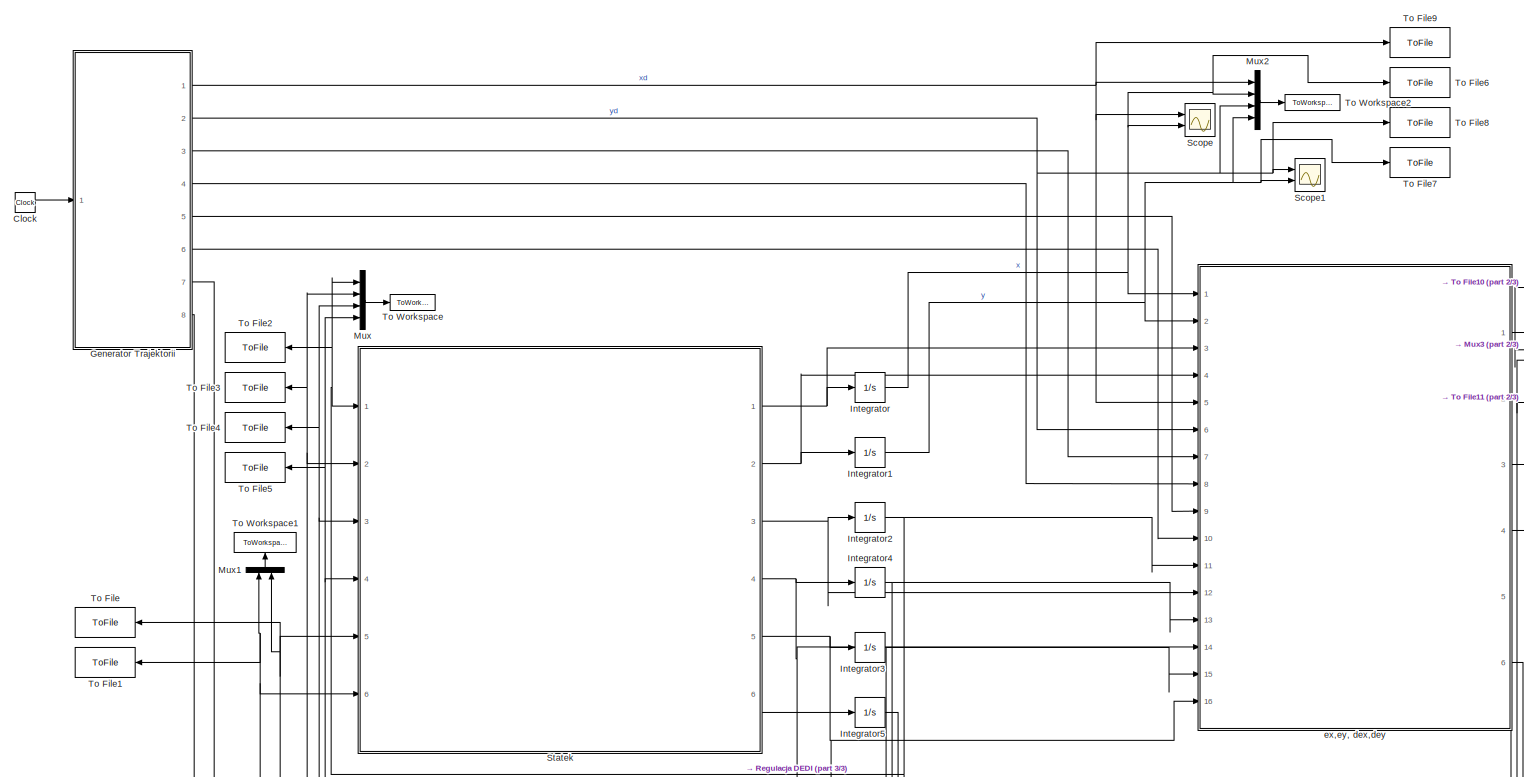
[diagram: root canvas - part 1/3, full width, top band]
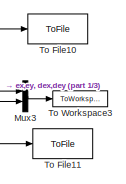
[diagram: root canvas - part 2/3, top right region]
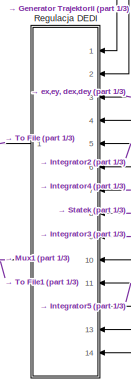
[diagram: root canvas - part 3/3, bottom center region]
MODEL slx_65b0e831601b
KIND model
CONFIG AbsTol = auto
CONFIG FixedStep = 0.001
CONFIG MaxStep = 0.01
CONFIG MinStep = .009
CONFIG RelTol = 1e-2
CONFIG SampleTimeConstraint = Unconstrained
CONFIG Solver = FixedStepAuto
CONFIG SolverMode = SingleTasking
CONFIG SolverName = FixedStepAuto
CONFIG StartTime = 0.0
CONFIG StopTime = 10
BLOCK [Clock] Clock
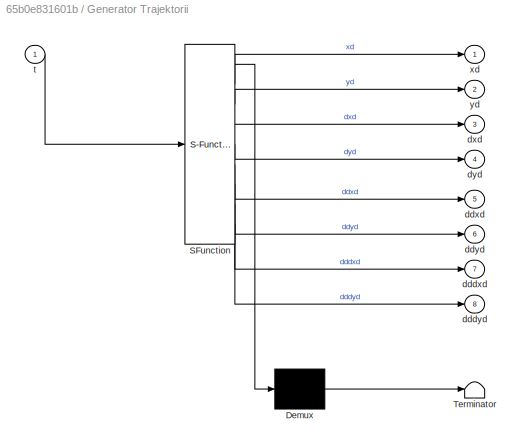
BLOCK [SubSystem] Generator Trajektorii
  ErrorFcn = Stateflow.Translate.translate
  PermitHierarchicalResolution = ExplicitOnly
  Ports = [1, 8]
  RequestExecContextInheritance = off
  SFBlockType = MATLAB Function
  TreatAsAtomicUnit = on
BLOCK [Demux] Generator Trajektorii/ Demux 
  Outputs = 1
  Ports = [1, 1]
BLOCK [S-Function] Generator Trajektorii/ SFunction 
  EnableBusSupport = on
  FunctionName = sf_sfun
  PortCounts = [1 9]
  Ports = [1, 9]
  SFunctionDeploymentMode = off
  Tag = Stateflow S-Function Sterowanie_StatkiemDEDI_2015 1
BLOCK [Terminator] Generator Trajektorii/ Terminator 
BLOCK [Outport] Generator Trajektorii/dddxd
  IconDisplay = Port number
  Port = 7
BLOCK [Outport] Generator Trajektorii/dddyd
  IconDisplay = Port number
  Port = 8
BLOCK [Outport] Generator Trajektorii/ddxd
  IconDisplay = Port number
  Port = 5
BLOCK [Outport] Generator Trajektorii/ddyd
  IconDisplay = Port number
  Port = 6
BLOCK [Outport] Generator Trajektorii/dxd
  IconDisplay = Port number
  Port = 3
BLOCK [Outport] Generator Trajektorii/dyd
  IconDisplay = Port number
  Port = 4
BLOCK [Inport] Generator Trajektorii/t
  IconDisplay = Port number
BLOCK [Outport] Generator Trajektorii/xd
  IconDisplay = Port number
BLOCK [Outport] Generator Trajektorii/yd
  IconDisplay = Port number
  Port = 2
BLOCK [Integrator] Integrator
  InitialCondition = -0.01
  Ports = [1, 1]
BLOCK [Integrator] Integrator1
  InitialCondition = 1.01
  Ports = [1, 1]
BLOCK [Integrator] Integrator2
  InitialCondition = 0.01
  Ports = [1, 1]
BLOCK [Integrator] Integrator3
  InitialCondition = 0.1
  Ports = [1, 1]
BLOCK [Integrator] Integrator4
  InitialCondition = 0.1
  Ports = [1, 1]
BLOCK [Integrator] Integrator5
  InitialCondition = 0.1
  Ports = [1, 1]
BLOCK [Mux] Mux
  DisplayOption = bar
  Ports = [4, 1]
BLOCK [Mux] Mux1
  DisplayOption = bar
  Inputs = 2
  Ports = [2, 1]
BLOCK [Mux] Mux2
  DisplayOption = bar
  Ports = [4, 1]
BLOCK [Mux] Mux3
  DisplayOption = bar
  Inputs = 2
  Ports = [2, 1]
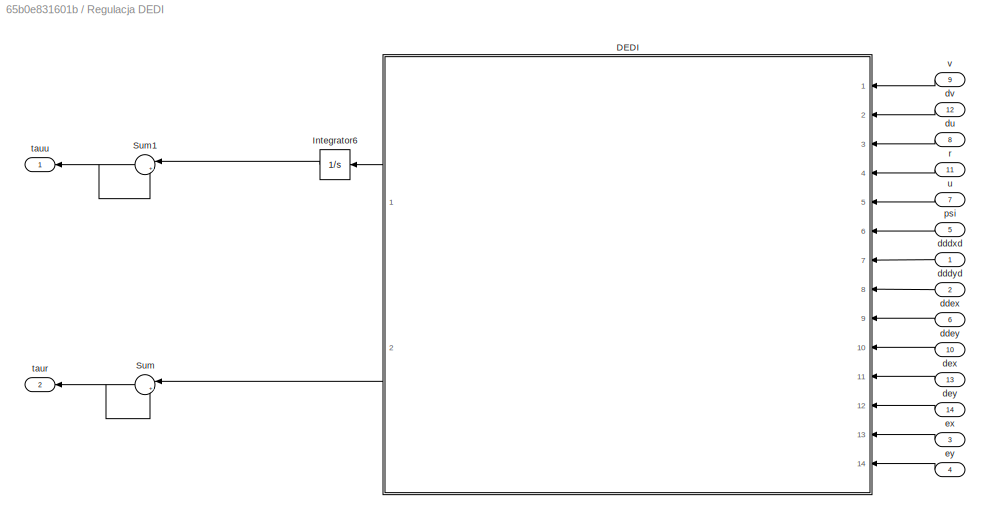
BLOCK [SubSystem] Regulacja DEDI
  Ports = [14, 2]
  RequestExecContextInheritance = off
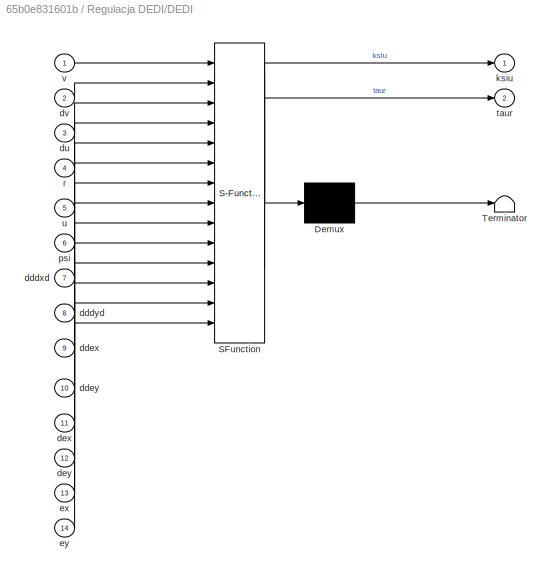
BLOCK [SubSystem] Regulacja DEDI/DEDI
  ErrorFcn = Stateflow.Translate.translate
  PermitHierarchicalResolution = ExplicitOnly
  Ports = [14, 2]
  RequestExecContextInheritance = off
  SFBlockType = MATLAB Function
  TreatAsAtomicUnit = on
BLOCK [Demux] Regulacja DEDI/DEDI/ Demux 
  Outputs = 1
  Ports = [1, 1]
BLOCK [S-Function] Regulacja DEDI/DEDI/ SFunction 
  EnableBusSupport = on
  FunctionName = sf_sfun
  PortCounts = [14 3]
  Ports = [14, 3]
  SFunctionDeploymentMode = off
  Tag = Stateflow S-Function Sterowanie_StatkiemDEDI_2015 4
BLOCK [Terminator] Regulacja DEDI/DEDI/ Terminator 
BLOCK [Inport] Regulacja DEDI/DEDI/dddxd
  IconDisplay = Port number
  Port = 7
BLOCK [Inport] Regulacja DEDI/DEDI/dddyd
  IconDisplay = Port number
  Port = 8
BLOCK [Inport] Regulacja DEDI/DEDI/ddex
  IconDisplay = Port number
  Port = 9
BLOCK [Inport] Regulacja DEDI/DEDI/ddey
  IconDisplay = Port number
  Port = 10
BLOCK [Inport] Regulacja DEDI/DEDI/dex
  IconDisplay = Port number
  Port = 11
BLOCK [Inport] Regulacja DEDI/DEDI/dey
  IconDisplay = Port number
  Port = 12
BLOCK [Inport] Regulacja DEDI/DEDI/du
  IconDisplay = Port number
  Port = 3
BLOCK [Inport] Regulacja DEDI/DEDI/dv
  IconDisplay = Port number
  Port = 2
BLOCK [Inport] Regulacja DEDI/DEDI/ex
  IconDisplay = Port number
  Port = 13
BLOCK [Inport] Regulacja DEDI/DEDI/ey
  IconDisplay = Port number
  Port = 14
BLOCK [Outport] Regulacja DEDI/DEDI/ksiu
  IconDisplay = Port number
BLOCK [Inport] Regulacja DEDI/DEDI/psi
  IconDisplay = Port number
  Port = 6
BLOCK [Inport] Regulacja DEDI/DEDI/r
  IconDisplay = Port number
  Port = 4
BLOCK [Outport] Regulacja DEDI/DEDI/taur
  IconDisplay = Port number
  Port = 2
BLOCK [Inport] Regulacja DEDI/DEDI/u
  IconDisplay = Port number
  Port = 5
BLOCK [Inport] Regulacja DEDI/DEDI/v
  IconDisplay = Port number
BLOCK [Integrator] Regulacja DEDI/Integrator6
  Ports = [1, 1]
BLOCK [Sum] Regulacja DEDI/Sum
  IconShape = round
  InputSameDT = off
  Inputs = |+-
  OutDataTypeStr = Inherit: Inherit via internal rule
  Ports = [2, 1]
  SaturateOnIntegerOverflow = off
BLOCK [Sum] Regulacja DEDI/Sum1
  IconShape = round
  InputSameDT = off
  Inputs = |+-
  OutDataTypeStr = Inherit: Inherit via internal rule
  Ports = [2, 1]
  SaturateOnIntegerOverflow = off
BLOCK [Inport] Regulacja DEDI/dddxd
  IconDisplay = Port number
BLOCK [Inport] Regulacja DEDI/dddyd
  IconDisplay = Port number
  Port = 2
BLOCK [Inport] Regulacja DEDI/ddex
  IconDisplay = Port number
  Port = 6
BLOCK [Inport] Regulacja DEDI/ddey
  IconDisplay = Port number
  Port = 10
BLOCK [Inport] Regulacja DEDI/dex
  IconDisplay = Port number
  Port = 13
BLOCK [Inport] Regulacja DEDI/dey
  IconDisplay = Port number
  Port = 14
BLOCK [Inport] Regulacja DEDI/du
  IconDisplay = Port number
  Port = 8
BLOCK [Inport] Regulacja DEDI/dv
  IconDisplay = Port number
  Port = 12
BLOCK [Inport] Regulacja DEDI/ex
  IconDisplay = Port number
  Port = 3
BLOCK [Inport] Regulacja DEDI/ey
  IconDisplay = Port number
  Port = 4
BLOCK [Inport] Regulacja DEDI/psi
  IconDisplay = Port number
  Port = 5
BLOCK [Inport] Regulacja DEDI/r
  IconDisplay = Port number
  Port = 11
BLOCK [Outport] Regulacja DEDI/taur
  IconDisplay = Port number
  Port = 2
BLOCK [Outport] Regulacja DEDI/tauu
  IconDisplay = Port number
BLOCK [Inport] Regulacja DEDI/u
  IconDisplay = Port number
  Port = 7
BLOCK [Inport] Regulacja DEDI/v
  IconDisplay = Port number
  Port = 9
BLOCK [Scope] Scope
  Floating = off
  NumInputPorts = 2
  Ports = [2]
  ScopeSpecificationString = Simulink.scopes.TimeScopeBlockCfg('CurrentConfiguration', extmgr.ConfigurationSet(extmgr.Configuration('Core','General UI',true),extmgr.Configuration('Core','Source UI',true),extmgr.Configuration('Sources','WiredSimulink',true),extmgr.Configuration('Visuals','Time Domain',true,'SerializedDisplays',{struct('MinYLimReal','-1.25','MaxYLimReal','1.25','YLabelReal','','MinYLimMag','0.00000','MaxYLimMag...<+1412ch>
BLOCK [Scope] Scope1
  Floating = off
  NumInputPorts = 2
  Ports = [2]
  ScopeSpecificationString = Simulink.scopes.TimeScopeBlockCfg('CurrentConfiguration', extmgr.ConfigurationSet(extmgr.Configuration('Core','General UI',true),extmgr.Configuration('Core','Source UI',true),extmgr.Configuration('Sources','WiredSimulink',true,'DataLoggingVariableName','ScopeData1'),extmgr.Configuration('Visuals','Time Domain',true,'SerializedDisplays',{struct('MinYLimReal','-1.26359','MaxYLimReal','1.2718','YLabe...<+1420ch>
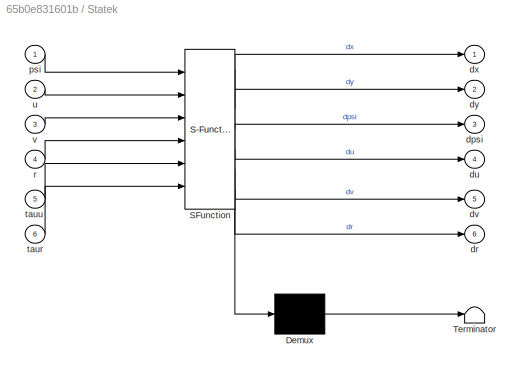
BLOCK [SubSystem] Statek
  ErrorFcn = Stateflow.Translate.translate
  PermitHierarchicalResolution = ExplicitOnly
  Ports = [6, 6]
  RequestExecContextInheritance = off
  SFBlockType = MATLAB Function
  TreatAsAtomicUnit = on
BLOCK [Demux] Statek/ Demux 
  Outputs = 1
  Ports = [1, 1]
BLOCK [S-Function] Statek/ SFunction 
  EnableBusSupport = on
  FunctionName = sf_sfun
  PortCounts = [6 7]
  Ports = [6, 7]
  SFunctionDeploymentMode = off
  Tag = Stateflow S-Function Sterowanie_StatkiemDEDI_2015 2
BLOCK [Terminator] Statek/ Terminator 
BLOCK [Outport] Statek/dpsi
  IconDisplay = Port number
  Port = 3
BLOCK [Outport] Statek/dr
  IconDisplay = Port number
  Port = 6
BLOCK [Outport] Statek/du
  IconDisplay = Port number
  Port = 4
BLOCK [Outport] Statek/dv
  IconDisplay = Port number
  Port = 5
BLOCK [Outport] Statek/dx
  IconDisplay = Port number
BLOCK [Outport] Statek/dy
  IconDisplay = Port number
  Port = 2
BLOCK [Inport] Statek/psi
  IconDisplay = Port number
BLOCK [Inport] Statek/r
  IconDisplay = Port number
  Port = 4
BLOCK [Inport] Statek/taur
  IconDisplay = Port number
  Port = 6
BLOCK [Inport] Statek/tauu
  IconDisplay = Port number
  Port = 5
BLOCK [Inport] Statek/u
  IconDisplay = Port number
  Port = 2
BLOCK [Inport] Statek/v
  IconDisplay = Port number
  Port = 3
BLOCK [ToFile] To File
  Filename = tauu.mat
  Ports = [1]
  SaveFormat = Timeseries
BLOCK [ToFile] To File1
  Filename = taur.mat
  Ports = [1]
  SaveFormat = Timeseries
BLOCK [ToFile] To File10
  Filename = ex.mat
  Ports = [1]
  SaveFormat = Timeseries
BLOCK [ToFile] To File11
  Filename = ey.mat
  Ports = [1]
  SaveFormat = Timeseries
BLOCK [ToFile] To File2
  Filename = psi.mat
  Ports = [1]
  SaveFormat = Timeseries
BLOCK [ToFile] To File3
  Filename = u.mat
  Ports = [1]
  SaveFormat = Timeseries
BLOCK [ToFile] To File4
  Filename = v.mat
  Ports = [1]
  SaveFormat = Timeseries
BLOCK [ToFile] To File5
  Filename = r.mat
  Ports = [1]
  SaveFormat = Timeseries
BLOCK [ToFile] To File6
  Filename = x.mat
  Ports = [1]
  SaveFormat = Timeseries
BLOCK [ToFile] To File7
  Filename = y.mat
  Ports = [1]
  SaveFormat = Timeseries
BLOCK [ToFile] To File8
  Filename = yd.mat
  Ports = [1]
  SaveFormat = Timeseries
BLOCK [ToFile] To File9
  Filename = xd.mat
  Ports = [1]
  SaveFormat = Timeseries
BLOCK [ToWorkspace] To Workspace
  FixptAsFi = on
  MaxDataPoints = inf
  Ports = [1]
  SampleTime = -1
  SaveFormat = Timeseries
  VariableName = statek
BLOCK [ToWorkspace] To Workspace1
  FixptAsFi = on
  MaxDataPoints = inf
  Ports = [1]
  SampleTime = -1
  SaveFormat = Timeseries
  VariableName = sterowania
BLOCK [ToWorkspace] To Workspace2
  FixptAsFi = on
  MaxDataPoints = inf
  Ports = [1]
  SampleTime = -1
  SaveFormat = Timeseries
  VariableName = regulacja
BLOCK [ToWorkspace] To Workspace3
  FixptAsFi = on
  MaxDataPoints = inf
  Ports = [1]
  SampleTime = -1
  SaveFormat = Timeseries
  VariableName = uchyby
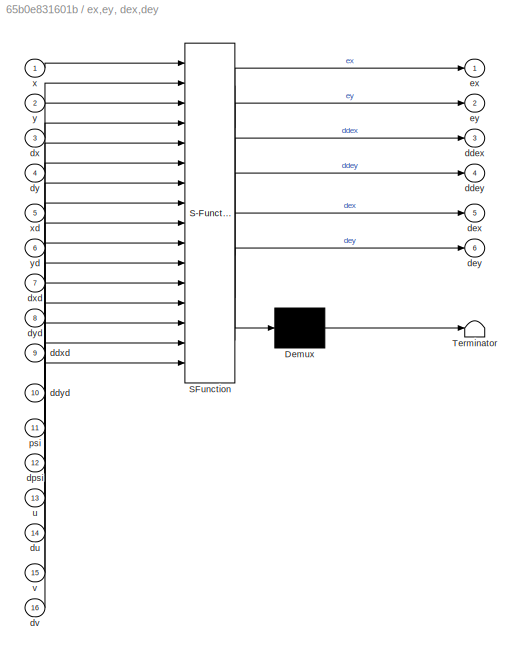
BLOCK [SubSystem] ex,ey, dex,dey
  ErrorFcn = Stateflow.Translate.translate
  PermitHierarchicalResolution = ExplicitOnly
  Ports = [16, 6]
  RequestExecContextInheritance = off
  SFBlockType = MATLAB Function
  TreatAsAtomicUnit = on
BLOCK [Demux] ex,ey, dex,dey/ Demux 
  Outputs = 1
  Ports = [1, 1]
BLOCK [S-Function] ex,ey, dex,dey/ SFunction 
  EnableBusSupport = on
  FunctionName = sf_sfun
  PortCounts = [16 7]
  Ports = [16, 7]
  SFunctionDeploymentMode = off
  Tag = Stateflow S-Function Sterowanie_StatkiemDEDI_2015 3
BLOCK [Terminator] ex,ey, dex,dey/ Terminator 
BLOCK [Outport] ex,ey, dex,dey/ddex
  IconDisplay = Port number
  Port = 3
BLOCK [Outport] ex,ey, dex,dey/ddey
  IconDisplay = Port number
  Port = 4
BLOCK [Inport] ex,ey, dex,dey/ddxd
  IconDisplay = Port number
  Port = 9
BLOCK [Inport] ex,ey, dex,dey/ddyd
  IconDisplay = Port number
  Port = 10
BLOCK [Outport] ex,ey, dex,dey/dex
  IconDisplay = Port number
  Port = 5
BLOCK [Outport] ex,ey, dex,dey/dey
  IconDisplay = Port number
  Port = 6
BLOCK [Inport] ex,ey, dex,dey/dpsi
  IconDisplay = Port number
  Port = 12
BLOCK [Inport] ex,ey, dex,dey/du
  IconDisplay = Port number
  Port = 14
BLOCK [Inport] ex,ey, dex,dey/dv
  IconDisplay = Port number
  Port = 16
BLOCK [Inport] ex,ey, dex,dey/dx
  IconDisplay = Port number
  Port = 3
BLOCK [Inport] ex,ey, dex,dey/dxd
  IconDisplay = Port number
  Port = 7
BLOCK [Inport] ex,ey, dex,dey/dy
  IconDisplay = Port number
  Port = 4
BLOCK [Inport] ex,ey, dex,dey/dyd
  IconDisplay = Port number
  Port = 8
BLOCK [Outport] ex,ey, dex,dey/ex
  IconDisplay = Port number
BLOCK [Outport] ex,ey, dex,dey/ey
  IconDisplay = Port number
  Port = 2
BLOCK [Inport] ex,ey, dex,dey/psi
  IconDisplay = Port number
  Port = 11
BLOCK [Inport] ex,ey, dex,dey/u
  IconDisplay = Port number
  Port = 13
BLOCK [Inport] ex,ey, dex,dey/v
  IconDisplay = Port number
  Port = 15
BLOCK [Inport] ex,ey, dex,dey/x
  IconDisplay = Port number
BLOCK [Inport] ex,ey, dex,dey/xd
  IconDisplay = Port number
  Port = 5
BLOCK [Inport] ex,ey, dex,dey/y
  IconDisplay = Port number
  Port = 2
BLOCK [Inport] ex,ey, dex,dey/yd
  IconDisplay = Port number
  Port = 6
LINE Clock:1 -> Generator Trajektorii:1
NET Generator Trajektorii:1 -> Mux2:1, Scope:1, To File9:1, ex,ey, dex,dey:5
NET Generator Trajektorii:2 -> Mux2:3, Scope1:1, To File8:1, ex,ey, dex,dey:6
LINE Generator Trajektorii:3 -> ex,ey, dex,dey:7
LINE Generator Trajektorii:4 -> ex,ey, dex,dey:8
LINE Generator Trajektorii:5 -> ex,ey, dex,dey:9
LINE Generator Trajektorii:6 -> ex,ey, dex,dey:10
LINE Generator Trajektorii:7 -> Regulacja DEDI:1
LINE Generator Trajektorii:8 -> Regulacja DEDI:2
NET Integrator1:1 -> Mux2:4, Scope1:2, To File7:1, ex,ey, dex,dey:2
NET Integrator2:1 -> Mux:1, Regulacja DEDI:5, Statek:1, To File2:1, ex,ey, dex,dey:11
NET Integrator3:1 -> Mux:3, Regulacja DEDI:9, Statek:3, To File4:1, ex,ey, dex,dey:15
NET Integrator4:1 -> Mux:2, Regulacja DEDI:7, Statek:2, To File3:1, ex,ey, dex,dey:13
NET Integrator5:1 -> Mux:4, Regulacja DEDI:11, Statek:4, To File5:1
NET Integrator:1 -> Mux2:2, Scope:2, To File6:1, ex,ey, dex,dey:1
LINE Mux1:1 -> To Workspace1:1
LINE Mux2:1 -> To Workspace2:1
LINE Mux3:1 -> To Workspace3:1
LINE Mux:1 -> To Workspace:1
LINE Regulacja DEDI/DEDI:1 -> Regulacja DEDI/Integrator6:1
LINE Regulacja DEDI/DEDI:2 -> Regulacja DEDI/Sum:1
LINE Regulacja DEDI/Integrator6:1 -> Regulacja DEDI/Sum1:1
NET Regulacja DEDI/Sum1:1 -> Regulacja DEDI/Sum1:2, Regulacja DEDI/tauu:1
NET Regulacja DEDI/Sum:1 -> Regulacja DEDI/Sum:2, Regulacja DEDI/taur:1
LINE Regulacja DEDI/dddxd:1 -> Regulacja DEDI/DEDI:7
LINE Regulacja DEDI/dddyd:1 -> Regulacja DEDI/DEDI:8
LINE Regulacja DEDI/ddex:1 -> Regulacja DEDI/DEDI:9
LINE Regulacja DEDI/ddey:1 -> Regulacja DEDI/DEDI:10
LINE Regulacja DEDI/dex:1 -> Regulacja DEDI/DEDI:11
LINE Regulacja DEDI/dey:1 -> Regulacja DEDI/DEDI:12
LINE Regulacja DEDI/du:1 -> Regulacja DEDI/DEDI:3
LINE Regulacja DEDI/dv:1 -> Regulacja DEDI/DEDI:2
LINE Regulacja DEDI/ex:1 -> Regulacja DEDI/DEDI:13
LINE Regulacja DEDI/ey:1 -> Regulacja DEDI/DEDI:14
LINE Regulacja DEDI/psi:1 -> Regulacja DEDI/DEDI:6
LINE Regulacja DEDI/r:1 -> Regulacja DEDI/DEDI:4
LINE Regulacja DEDI/u:1 -> Regulacja DEDI/DEDI:5
LINE Regulacja DEDI/v:1 -> Regulacja DEDI/DEDI:1
NET Regulacja DEDI:1 -> Mux1:2, Statek:5, To File:1
NET Regulacja DEDI:2 -> Mux1:1, Statek:6, To File1:1
NET Statek:1 -> Integrator:1, ex,ey, dex,dey:3
NET Statek:2 -> Integrator1:1, ex,ey, dex,dey:4
NET Statek:3 -> Integrator2:1, ex,ey, dex,dey:12
NET Statek:4 -> Integrator4:1, Regulacja DEDI:8, ex,ey, dex,dey:14
NET Statek:5 -> Integrator3:1, Regulacja DEDI:12, ex,ey, dex,dey:16
LINE Statek:6 -> Integrator5:1
NET ex,ey, dex,dey:1 -> Mux3:1, Regulacja DEDI:3, To File10:1
NET ex,ey, dex,dey:2 -> Mux3:2, Regulacja DEDI:4, To File11:1
LINE ex,ey, dex,dey:3 -> Regulacja DEDI:6
LINE ex,ey, dex,dey:4 -> Regulacja DEDI:10
LINE ex,ey, dex,dey:5 -> Regulacja DEDI:13
LINE ex,ey, dex,dey:6 -> Regulacja DEDI:14
note: NET lines group one-source signal fan-out (src -> all destinations, sorted); 1:1 wires keep LINE
CHART Generator Trajektorii states=1 transitions=1
  STATE_LABEL 'eML_blk_kernel()'
  STATE_LABEL 'SCRIPT:\nfunction [xd,yd,dxd,dyd,ddxd,ddyd,dddxd,dddyd] = fcn(t)\n\nxd = sin(t);\nyd = cos(t);\ndxd=cos(t);\ndyd=-sin(t);\nddxd = -sin(t);\nddyd = -cos(t);\ndddxd = -cos(t);\ndddyd = sin(t);'
CHART Statek states=1 transitions=1
  STATE_LABEL 'eML_blk_kernel()'
  STATE_LABEL 'SCRIPT:\nfunction [dx,dy,dpsi,du,dv,dr] = fcn(psi,u,v,r,tauu,taur)\nm11=1.956;\nm22=2.405;\nm33=0.043;\nd11=2.436;\nd22=12.992;\nd33=0.0564;\ndx = u*cos(psi)-v*sin(psi);\ndy = u*sin(psi)+v*cos(psi);\ndpsi = r;\ndu = (m22*v*r-d11*u+tauu)/m11;\ndv = (-m11*u*r-d22*v)/m22;\ndr = ((m11-m22)*u*v-d33*r+taur)/m33;\n\n\n\n'
CHART ex,ey, dex,dey states=1 transitions=1
  STATE_LABEL 'eML_blk_kernel()'
  STATE_LABEL 'SCRIPT:\nfunction [ex,ey,ddex,ddey,dex,dey] = fcn(x,y,dx,dy,xd,yd,dxd,dyd,ddxd,ddyd,psi,dpsi,u,du,v,dv)\n\nex = x-xd;\ney = y-yd;\nm11=1.956;\ndex=dx-dxd;\ndey=dy-dyd;\nddex = du*cos(psi)-u*dpsi*sin(psi)-dv*sin(psi)-v*dpsi*cos(psi)-ddxd;\nddey = du*sin(psi)+u*dpsi*cos(psi)+dv*cos(psi)-v*dpsi*sin(psi)-ddyd;'
CHART Regulacja DEDI/DEDI states=1 transitions=1
  STATE_LABEL 'eML_blk_kernel()'
  STATE_LABEL 'SCRIPT:\nfunction [ksiu,taur] = fcn(v,dv,du,r,u,psi,dddxd,dddyd,ddex,ddey,dex,dey,ex,ey)\n\nm11=1.956;\nm22=2.405;\nm33=0.043;\nd11=2.436;\nd22=12.992;\nd33=0.0564;\n\nk11=6;\nk12=12;\nk13=8;\nk14=6;\nk15=12;\nk16=8;\n\n%fu = (m22*v*r-d11*u)/m11;\nfr = ((m11-m22)*u*v-d33*r)/m33;\n%gu = 1/m11;\n%gr = 1/m33;\n\nau = (m22*dv*r+m22*v*fr-d11*du)/m11;\nav = (-m11*du*r-m11*u*fr-d22*dv)/m22;\n%bu = m22*v/(m11*m33);\n%bv = -m11*u/...<+409ch>'
